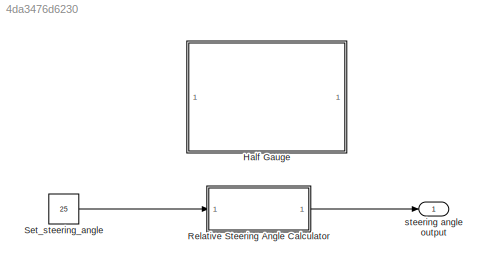
MODEL slx_4da3476d6230
KIND model
CONFIG AbsTol = auto
CONFIG EnableMultiTasking = off
CONFIG FixedStep = auto
CONFIG MaxStep = auto
CONFIG MinStep = auto
CONFIG RelTol = 1e-3
CONFIG SampleTimeConstraint = Unconstrained
CONFIG Solver = VariableStepAuto
CONFIG SolverName = VariableStepAuto
CONFIG StartTime = 0.0
CONFIG StopTime = 10.0
BLOCK [SubSystem] Half Gauge
  DialogController = hmiCreateDDGDialog
  IsWebBlock = on
  MaskHideContents = on
  Ports = []
  RequestExecContextInheritance = off
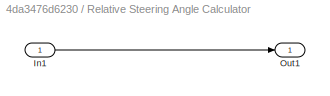
BLOCK [SubSystem] Relative Steering Angle Calculator
  Ports = [1, 1]
  RequestExecContextInheritance = off
BLOCK [Inport] Relative Steering Angle Calculator/In1
  IconDisplay = Port number
  OutDataTypeStr = uint8
  OutMax = 180
  OutMin = 0
BLOCK [Outport] Relative Steering Angle Calculator/Out1
  IconDisplay = Port number
BLOCK [Constant] Set_steering_angle
  OutDataTypeStr = uint8
  OutMax = 180
  OutMin = 0
  Value = 25
BLOCK [Outport] steering angle output
  IconDisplay = Port number
LINE Relative Steering Angle Calculator/In1:1 -> Relative Steering Angle Calculator/Out1:1
LINE Relative Steering Angle Calculator:1 -> steering angle output:1
LINE Set_steering_angle:1 -> Relative Steering Angle Calculator:1
